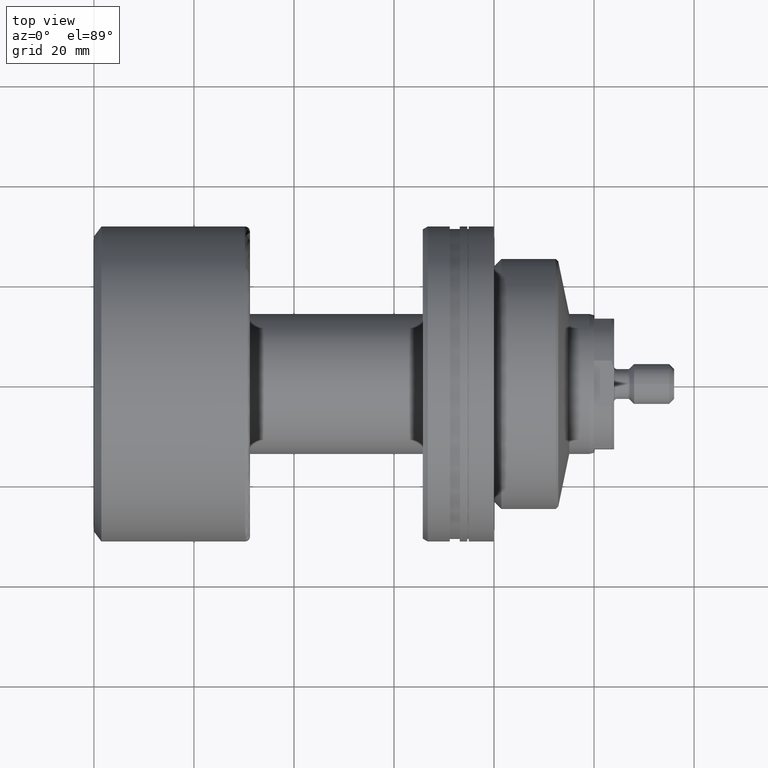
[diagram: clean part render]
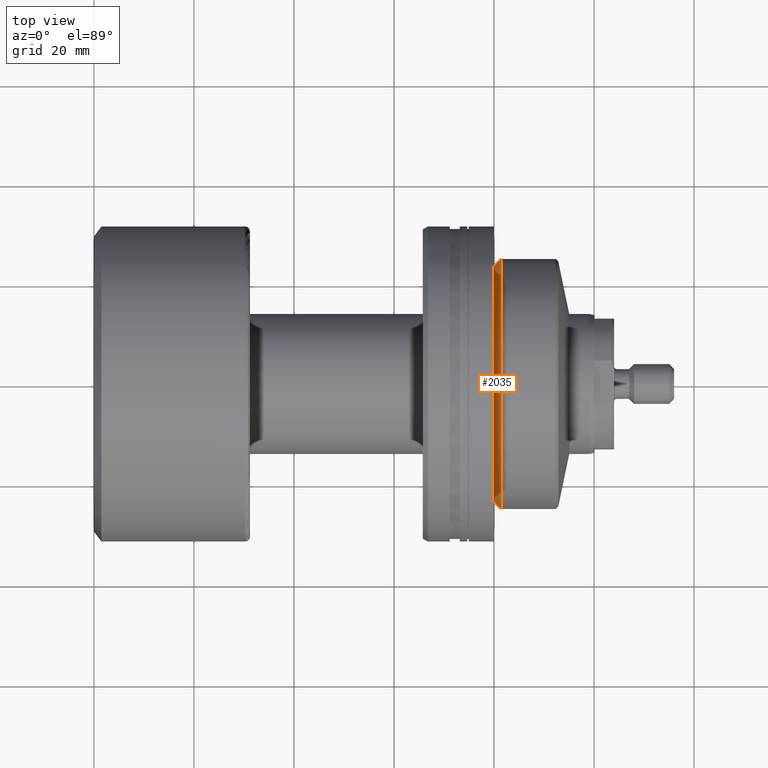
[diagram: same view with one face highlighted and labeled with its STEP entity id]
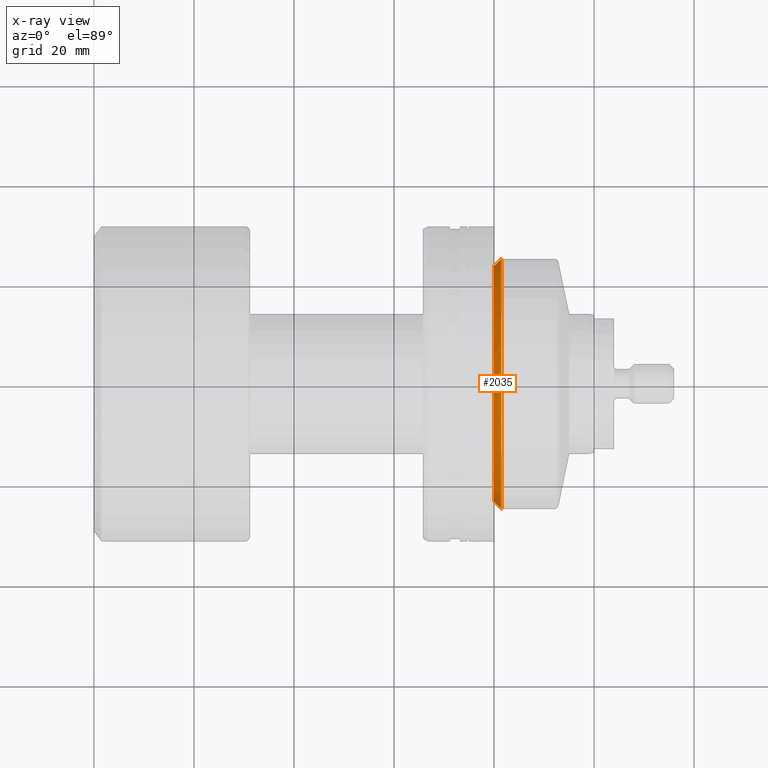
[diagram: x-ray of the same camera — body ghosted, the highlighted face saturated]
A machine part, top view. The second image highlights one B-rep face of the part: STEP entity #2035.
The next image is the same camera in x-ray: the body ghosted, the highlighted face saturated — about 0% of this face is hidden behind the body in this view.
In plain terms, the highlighted conical surface has half-angle 45 deg.
Its self-contained STEP definition (entity closure, byte-faithful):
#21 = CARTESIAN_POINT ( 'NONE',  ( -18.00000000000000355, -23.50000000000067857, 2.969768487932376647E-15 ) ) ;
#105 = DIRECTION ( 'NONE',  ( 0.7071067811865445751, 0.7071067811865504593, 0.000000000000000000 ) ) ;
#213 = EDGE_CURVE ( 'NONE', #2252, #1498, #2770, .T. ) ;
#224 = DIRECTION ( 'NONE',  ( 0.7071067811865472397, -0.7071067811865479058, 8.659560562354953812E-17 ) ) ;
#230 = AXIS2_PLACEMENT_3D ( 'NONE', #1070, #240, #1714 ) ;
#240 = DIRECTION ( 'NONE',  ( 1.000000000000000000, 1.931394410353556421E-15, -0.000000000000000000 ) ) ;
#313 = VERTEX_POINT ( 'NONE', #21 ) ;
#409 = DIRECTION ( 'NONE',  ( -1.919268526612579991E-15, 1.000000000000000000, 0.000000000000000000 ) ) ;
#495 = CARTESIAN_POINT ( 'NONE',  ( -18.00000000000009237, 23.50000000000072831, 0.000000000000000000 ) ) ;
#547 = VECTOR ( 'NONE', #224, 999.9999999999998863 ) ;
#655 = CARTESIAN_POINT ( 'NONE',  ( -18.00000000000000355, -23.50000000000067857, 2.877919977996365912E-15 ) ) ;
#700 = ORIENTED_EDGE ( 'NONE', *, *, #1188, .F. ) ;
#708 = CIRCLE ( 'NONE', #1493, 23.50000000000070344 ) ;
#735 = LINE ( 'NONE', #495, #1979 ) ;
#969 = EDGE_CURVE ( 'NONE', #1947, #313, #708, .T. ) ;
#1044 = CARTESIAN_POINT ( 'NONE',  ( -18.00000000000009237, 23.50000000000072831, 0.000000000000000000 ) ) ;
#1059 = DIRECTION ( 'NONE',  ( -1.942890293094021579E-15, 1.000000000000000000, 0.000000000000000000 ) ) ;
#1070 = CARTESIAN_POINT ( 'NONE',  ( -18.00000000000004619, 2.371756733105775503E-14, 0.000000000000000000 ) ) ;
#1184 = CONICAL_SURFACE ( 'NONE', #230, 23.50000000000070344, 0.7853981633974506105 ) ;
#1186 = EDGE_LOOP ( 'NONE', ( #2266, #2045, #1669, #700 ) ) ;
#1188 = EDGE_CURVE ( 'NONE', #1947, #2252, #735, .T. ) ;
#1493 = AXIS2_PLACEMENT_3D ( 'NONE', #2324, #2554, #409 ) ;
#1498 = VERTEX_POINT ( 'NONE', #2772 ) ;
#1528 = FACE_OUTER_BOUND ( 'NONE', #1186, .T. ) ;
#1575 = AXIS2_PLACEMENT_3D ( 'NONE', #1673, #2524, #1059 ) ;
#1669 = ORIENTED_EDGE ( 'NONE', *, *, #213, .F. ) ;
#1673 = CARTESIAN_POINT ( 'NONE',  ( -16.50000000000072831, 2.661465894658677424E-14, 0.000000000000000000 ) ) ;
#1714 = DIRECTION ( 'NONE',  ( -1.919268526612579991E-15, 1.000000000000000000, 0.000000000000000000 ) ) ;
#1746 = LINE ( 'NONE', #655, #547 ) ;
#1947 = VERTEX_POINT ( 'NONE', #1044 ) ;
#1979 = VECTOR ( 'NONE', #105, 1000.000000000000000 ) ;
#2027 = CARTESIAN_POINT ( 'NONE',  ( -16.50000000000077804, 25.00000000000005684, 0.000000000000000000 ) ) ;
#2035 = ADVANCED_FACE ( 'NONE', ( #1528 ), #1184, .T. ) ;
#2045 = ORIENTED_EDGE ( 'NONE', *, *, #2548, .T. ) ;
#2252 = VERTEX_POINT ( 'NONE', #2027 ) ;
#2266 = ORIENTED_EDGE ( 'NONE', *, *, #969, .T. ) ;
#2324 = CARTESIAN_POINT ( 'NONE',  ( -18.00000000000004619, 2.371756733105775503E-14, 0.000000000000000000 ) ) ;
#2524 = DIRECTION ( 'NONE',  ( 1.000000000000000000, 1.931394410353556421E-15, -0.000000000000000000 ) ) ;
#2548 = EDGE_CURVE ( 'NONE', #313, #1498, #1746, .T. ) ;
#2554 = DIRECTION ( 'NONE',  ( 1.000000000000000000, 1.931394410353556421E-15, -0.000000000000000000 ) ) ;
#2770 = CIRCLE ( 'NONE', #1575, 25.00000000000002842 ) ;
#2772 = CARTESIAN_POINT ( 'NONE',  ( -16.50000000000068212, -25.00000000000000000, 3.061616997868386198E-15 ) ) ;